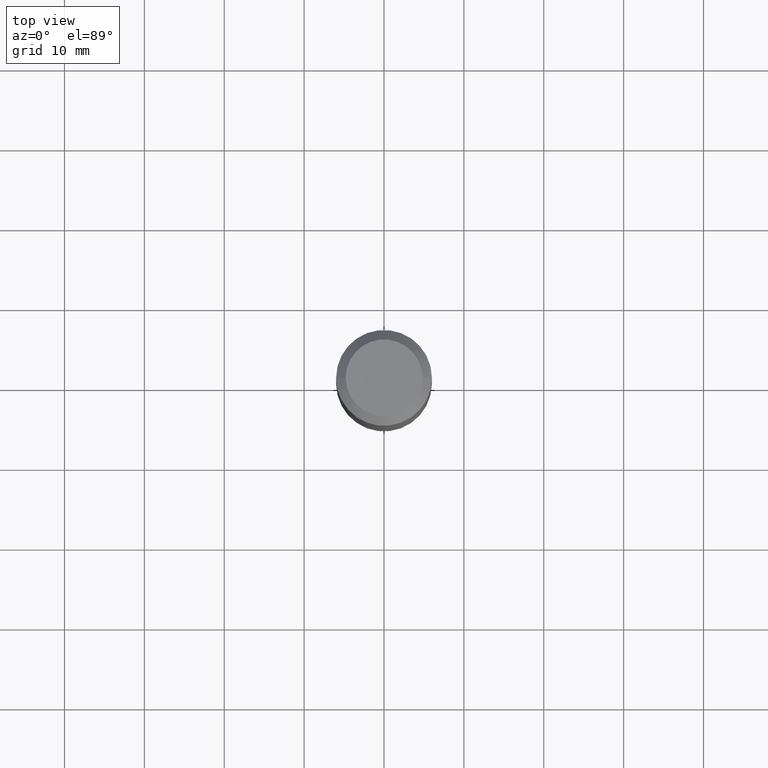
[diagram: clean part render]
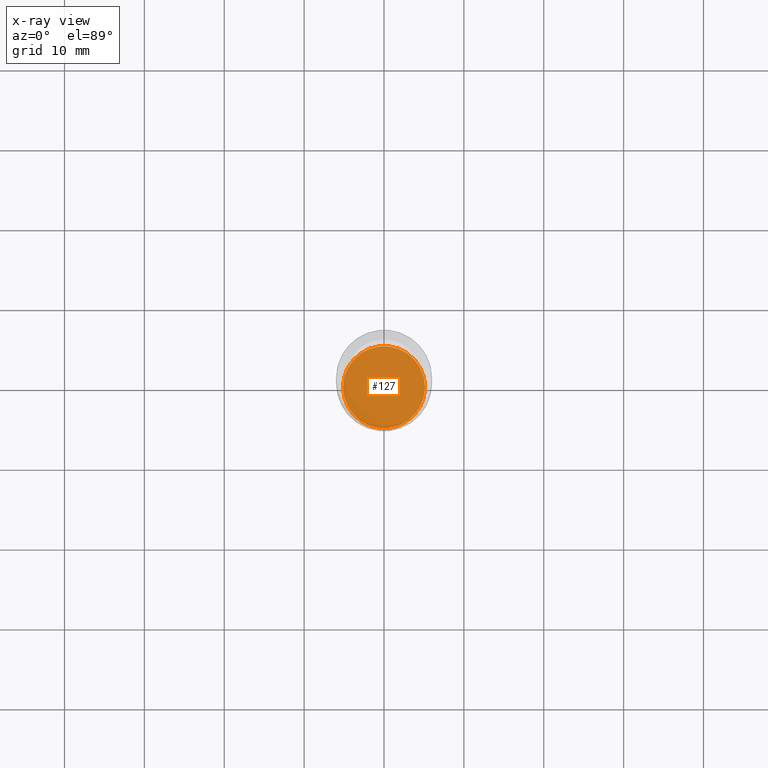
[diagram: x-ray — body ghosted, one internal face saturated and labeled with its STEP entity id]
A machine part, top view, then the same camera in x-ray: the body is ghosted and one INTERNAL B-rep face — a face not visible from any outside direction — is saturated and labeled: STEP entity #127.
In plain terms, the highlighted planar face has unit normal (-0, 0, 1).
Its self-contained STEP definition (entity closure, byte-faithful):
#13 = DIRECTION ( 'NONE',  ( 1.000000000000000000, -6.982962677686265922E-15, 4.876176775795935793E-29 ) ) ;
#30 = DIRECTION ( 'NONE',  ( -2.445468806185136597E-29, 3.491481338843145583E-15, 1.000000000000000000 ) ) ;
#35 = CARTESIAN_POINT ( 'NONE',  ( 0.2022500000000000131, -1.084035126084019139E-14, -2.700299999999999478 ) ) ;
#55 = DIRECTION ( 'NONE',  ( 1.000000000000000000, -6.982962677686268288E-15, 0.000000000000000000 ) ) ;
#70 = AXIS2_PLACEMENT_3D ( 'NONE', #256, #373, #13 ) ;
#86 = DIRECTION ( 'NONE',  ( -2.445468806185136597E-29, 3.491481338843145583E-15, 1.000000000000000000 ) ) ;
#88 = CARTESIAN_POINT ( 'NONE',  ( 6.603499417341723147E-29, -9.428047059278143727E-15, -2.700299999999999478 ) ) ;
#95 = FACE_OUTER_BOUND ( 'NONE', #193, .T. ) ;
#127 = ADVANCED_FACE ( 'NONE', ( #95 ), #422, .F. ) ;
#168 = CIRCLE ( 'NONE', #466, 0.2022500000000000131 ) ;
#182 = CIRCLE ( 'NONE', #480, 0.2022500000000000131 ) ;
#193 = EDGE_LOOP ( 'NONE', ( #287, #364 ) ) ;
#194 = EDGE_CURVE ( 'NONE', #403, #471, #168, .T. ) ;
#222 = CARTESIAN_POINT ( 'NONE',  ( -0.2022500000000000131, -7.988325149029228821E-15, -2.700299999999999478 ) ) ;
#229 = CARTESIAN_POINT ( 'NONE',  ( 6.603499417341723147E-29, -9.428047059278143727E-15, -2.700299999999999478 ) ) ;
#256 = CARTESIAN_POINT ( 'NONE',  ( 6.603499417341723147E-29, -9.428047059278143727E-15, -2.700299999999999478 ) ) ;
#258 = DIRECTION ( 'NONE',  ( 1.000000000000000000, -6.982962677686268288E-15, 0.000000000000000000 ) ) ;
#287 = ORIENTED_EDGE ( 'NONE', *, *, #418, .F. ) ;
#364 = ORIENTED_EDGE ( 'NONE', *, *, #194, .F. ) ;
#373 = DIRECTION ( 'NONE',  ( -2.438088387897960049E-29, 3.491481338843145188E-15, 1.000000000000000000 ) ) ;
#403 = VERTEX_POINT ( 'NONE', #222 ) ;
#418 = EDGE_CURVE ( 'NONE', #471, #403, #182, .T. ) ;
#422 = PLANE ( 'NONE',  #70 ) ;
#466 = AXIS2_PLACEMENT_3D ( 'NONE', #88, #86, #55 ) ;
#471 = VERTEX_POINT ( 'NONE', #35 ) ;
#480 = AXIS2_PLACEMENT_3D ( 'NONE', #229, #30, #258 ) ;